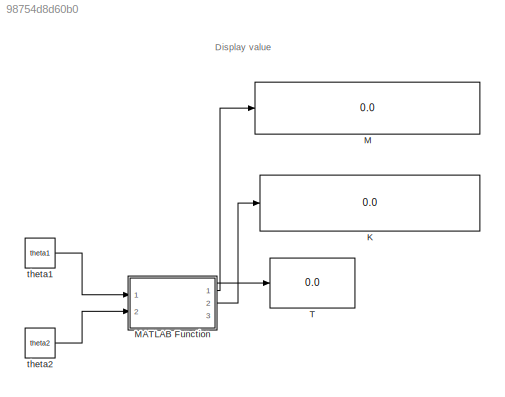
MODEL slx_98754d8d60b0
KIND model
CONFIG AbsTol = auto
CONFIG EnableMultiTasking = off
CONFIG FixedStep = auto
CONFIG MaxStep = auto
CONFIG MinStep = auto
CONFIG RelTol = 1e-3
CONFIG SampleTimeConstraint = Unconstrained
CONFIG SolverName = VariableStepAuto
CONFIG StartTime = 0.0
CONFIG StopTime = 10.0
BLOCK [Display] K
  Decimation = 1
  Ports = [1]
BLOCK [Display] M
  Decimation = 1
  Ports = [1]
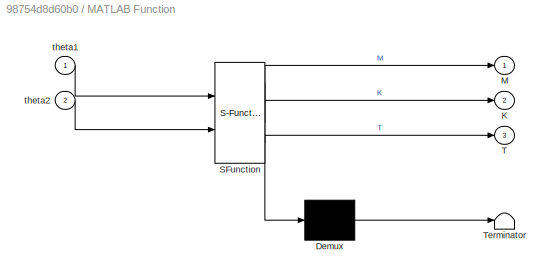
BLOCK [SubSystem] MATLAB Function
  ErrorFcn = Stateflow.Translate.translate
  PermitHierarchicalResolution = ExplicitOnly
  Ports = [2, 3]
  RequestExecContextInheritance = off
  SFBlockType = MATLAB Function
  TreatAsAtomicUnit = on
BLOCK [Demux] MATLAB Function/ Demux 
  Outputs = 1
  Ports = [1, 1]
BLOCK [S-Function] MATLAB Function/ SFunction 
  EnableBusSupport = on
  FunctionName = sf_sfun
  PortCounts = [2 4]
  Ports = [2, 4]
  SFcnIsStateOwnerBlock = off
  SFunctionDeploymentMode = off
  Tag = Stateflow S-Function 2
BLOCK [Terminator] MATLAB Function/ Terminator 
BLOCK [Outport] MATLAB Function/K
  Port = 2
BLOCK [Outport] MATLAB Function/M
BLOCK [Outport] MATLAB Function/T
  Port = 3
BLOCK [Inport] MATLAB Function/theta1
BLOCK [Inport] MATLAB Function/theta2
  Port = 2
BLOCK [Display] T
  Decimation = 1
  Ports = [1]
BLOCK [Constant] theta1
  Value = theta1
  VectorParams1D = off
BLOCK [Constant] theta2
  Value = theta2
  VectorParams1D = off
ANNOTATION (root): Display value
LINE MATLAB Function:1 -> M:1
LINE MATLAB Function:2 -> K:1
LINE MATLAB Function:3 -> T:1
LINE theta1:1 -> MATLAB Function:1
LINE theta2:1 -> MATLAB Function:2
CHART MATLAB Function states=1 transitions=1
  STATE_LABEL 'eML_blk_kernel()'
  STATE_LABEL 'SCRIPT:\nfunction [M,K,T] = fcn(theta1,theta2)\n\n[PKM] = Define_Robot();\n\n[M,K,T] = Matrici_Lagrange(PKM,theta1,theta2);\n\nend'
CHART  states=0 transitions=0
